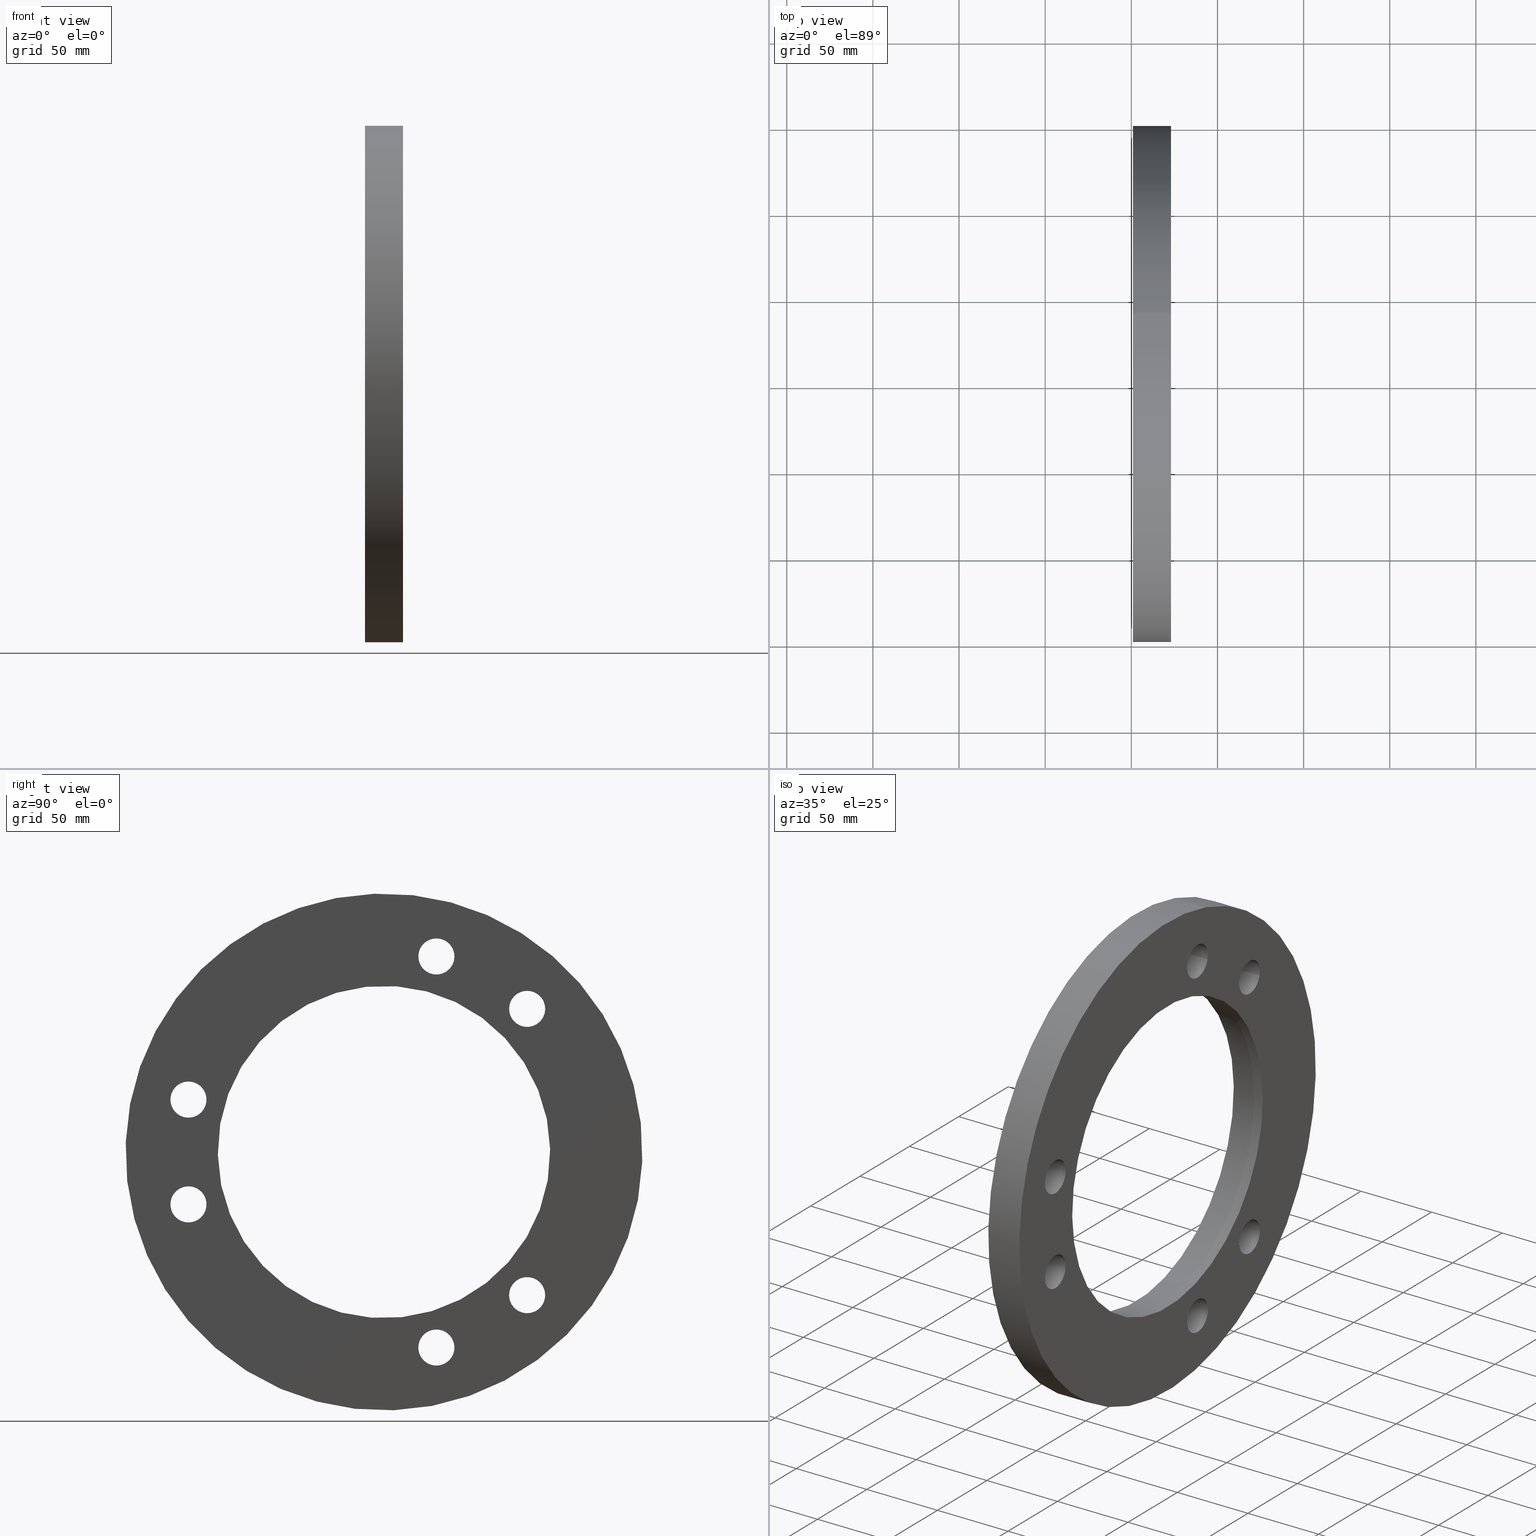
[diagram: canonical four-view strip — front | top / right | iso, engineering-drawing reading convention]
A machine part, canonical four-view strip (front | top / right | iso — engineering-drawing reading convention). The complete STEP part file that produces these views, byte-faithful:
ISO-10303-21;
HEADER;
/* Generated by software containing ST-Developer
 * from STEP Tools, Inc. (www.steptools.com) 
 */
/* OPTION: strings as raw bytes, not using required /X/ escapes */

FILE_DESCRIPTION(
/* description */ ('Unknown'),
/* implementation_level */ '2;1');

FILE_NAME(
/* name */ 'B15A11 SOLID',
/* time_stamp */ '2019-02-08T09:17:59+00:00',
/* author */ ('Unknown'),
/* organization */ ('Unknown'),
/* preprocessor_version */ 'ST-DEVELOPER v16.7',
/* originating_system */ 'DEX',
/* authorisation */ $);

FILE_SCHEMA (('AUTOMOTIVE_DESIGN {1 0 10303 214 3 1 1}'));
ENDSEC;

DATA;
#10=PROPERTY_DEFINITION_REPRESENTATION(#14,#12);
#11=PROPERTY_DEFINITION_REPRESENTATION(#15,#13);
#12=REPRESENTATION('',(#16),#361);
#13=REPRESENTATION('',(#17),#361);
#14=PROPERTY_DEFINITION('pmi validation property','',#370);
#15=PROPERTY_DEFINITION('pmi validation property','',#370);
#16=VALUE_REPRESENTATION_ITEM('number of annotations',COUNT_MEASURE(0.));
#17=VALUE_REPRESENTATION_ITEM('number of views',COUNT_MEASURE(0.));
#18=SHAPE_REPRESENTATION_RELATIONSHIP('','',#218,#19);
#19=ADVANCED_BREP_SHAPE_REPRESENTATION('',(#204),#363);
#20=CONICAL_SURFACE('',#246,96.45,0.124354709204595);
#21=PLANE('',#233);
#22=PLANE('',#240);
#23=ORIENTED_EDGE('',*,*,#57,.T.);
#24=ORIENTED_EDGE('',*,*,#58,.T.);
#25=ORIENTED_EDGE('',*,*,#59,.T.);
#26=ORIENTED_EDGE('',*,*,#60,.T.);
#27=ORIENTED_EDGE('',*,*,#61,.T.);
#28=ORIENTED_EDGE('',*,*,#62,.T.);
#29=ORIENTED_EDGE('',*,*,#63,.T.);
#30=ORIENTED_EDGE('',*,*,#64,.T.);
#31=ORIENTED_EDGE('',*,*,#60,.F.);
#32=ORIENTED_EDGE('',*,*,#58,.F.);
#33=ORIENTED_EDGE('',*,*,#64,.F.);
#34=ORIENTED_EDGE('',*,*,#62,.F.);
#35=ORIENTED_EDGE('',*,*,#65,.F.);
#36=ORIENTED_EDGE('',*,*,#66,.F.);
#37=ORIENTED_EDGE('',*,*,#67,.T.);
#38=ORIENTED_EDGE('',*,*,#68,.F.);
#39=ORIENTED_EDGE('',*,*,#69,.T.);
#40=ORIENTED_EDGE('',*,*,#67,.F.);
#41=ORIENTED_EDGE('',*,*,#59,.F.);
#42=ORIENTED_EDGE('',*,*,#57,.F.);
#43=ORIENTED_EDGE('',*,*,#63,.F.);
#44=ORIENTED_EDGE('',*,*,#61,.F.);
#45=ORIENTED_EDGE('',*,*,#70,.F.);
#46=ORIENTED_EDGE('',*,*,#71,.F.);
#47=ORIENTED_EDGE('',*,*,#72,.T.);
#48=ORIENTED_EDGE('',*,*,#69,.F.);
#49=ORIENTED_EDGE('',*,*,#73,.T.);
#50=ORIENTED_EDGE('',*,*,#72,.F.);
#51=ORIENTED_EDGE('',*,*,#68,.T.);
#52=ORIENTED_EDGE('',*,*,#73,.F.);
#53=ORIENTED_EDGE('',*,*,#71,.T.);
#54=ORIENTED_EDGE('',*,*,#66,.T.);
#55=ORIENTED_EDGE('',*,*,#70,.T.);
#56=ORIENTED_EDGE('',*,*,#65,.T.);
#57=EDGE_CURVE('',#74,#74,#91,.T.);
#58=EDGE_CURVE('',#75,#75,#92,.T.);
#59=EDGE_CURVE('',#76,#76,#93,.T.);
#60=EDGE_CURVE('',#77,#77,#94,.T.);
#61=EDGE_CURVE('',#78,#78,#95,.T.);
#62=EDGE_CURVE('',#79,#79,#96,.T.);
#63=EDGE_CURVE('',#80,#80,#97,.T.);
#64=EDGE_CURVE('',#81,#81,#98,.T.);
#65=EDGE_CURVE('',#82,#82,#99,.T.);
#66=EDGE_CURVE('',#83,#83,#100,.T.);
#67=EDGE_CURVE('',#84,#84,#101,.T.);
#68=EDGE_CURVE('',#85,#85,#102,.T.);
#69=EDGE_CURVE('',#86,#86,#103,.T.);
#70=EDGE_CURVE('',#87,#87,#104,.T.);
#71=EDGE_CURVE('',#88,#88,#105,.T.);
#72=EDGE_CURVE('',#89,#89,#106,.T.);
#73=EDGE_CURVE('',#90,#90,#107,.T.);
#74=VERTEX_POINT('',#316);
#75=VERTEX_POINT('',#318);
#76=VERTEX_POINT('',#321);
#77=VERTEX_POINT('',#323);
#78=VERTEX_POINT('',#326);
#79=VERTEX_POINT('',#328);
#80=VERTEX_POINT('',#331);
#81=VERTEX_POINT('',#333);
#82=VERTEX_POINT('',#336);
#83=VERTEX_POINT('',#338);
#84=VERTEX_POINT('',#340);
#85=VERTEX_POINT('',#342);
#86=VERTEX_POINT('',#345);
#87=VERTEX_POINT('',#348);
#88=VERTEX_POINT('',#350);
#89=VERTEX_POINT('',#352);
#90=VERTEX_POINT('',#355);
#91=CIRCLE('',#222,10.5);
#92=CIRCLE('',#223,10.5);
#93=CIRCLE('',#225,10.5);
#94=CIRCLE('',#226,10.5);
#95=CIRCLE('',#228,10.5);
#96=CIRCLE('',#229,10.5);
#97=CIRCLE('',#231,10.5);
#98=CIRCLE('',#232,10.5);
#99=CIRCLE('',#234,10.5);
#100=CIRCLE('',#235,10.5);
#101=CIRCLE('',#236,150.);
#102=CIRCLE('',#237,98.435);
#103=CIRCLE('',#239,150.);
#104=CIRCLE('',#241,10.5);
#105=CIRCLE('',#242,10.5);
#106=CIRCLE('',#243,96.45);
#107=CIRCLE('',#245,96.45);
#108=EDGE_LOOP('',(#23));
#109=EDGE_LOOP('',(#24));
#110=EDGE_LOOP('',(#25));
#111=EDGE_LOOP('',(#26));
#112=EDGE_LOOP('',(#27));
#113=EDGE_LOOP('',(#28));
#114=EDGE_LOOP('',(#29));
#115=EDGE_LOOP('',(#30));
#116=EDGE_LOOP('',(#31));
#117=EDGE_LOOP('',(#32));
#118=EDGE_LOOP('',(#33));
#119=EDGE_LOOP('',(#34));
#120=EDGE_LOOP('',(#35));
#121=EDGE_LOOP('',(#36));
#122=EDGE_LOOP('',(#37));
#123=EDGE_LOOP('',(#38));
#124=EDGE_LOOP('',(#39));
#125=EDGE_LOOP('',(#40));
#126=EDGE_LOOP('',(#41));
#127=EDGE_LOOP('',(#42));
#128=EDGE_LOOP('',(#43));
#129=EDGE_LOOP('',(#44));
#130=EDGE_LOOP('',(#45));
#131=EDGE_LOOP('',(#46));
#132=EDGE_LOOP('',(#47));
#133=EDGE_LOOP('',(#48));
#134=EDGE_LOOP('',(#49));
#135=EDGE_LOOP('',(#50));
#136=EDGE_LOOP('',(#51));
#137=EDGE_LOOP('',(#52));
#138=EDGE_LOOP('',(#53));
#139=EDGE_LOOP('',(#54));
#140=EDGE_LOOP('',(#55));
#141=EDGE_LOOP('',(#56));
#142=FACE_BOUND('',#108,.T.);
#143=FACE_BOUND('',#109,.T.);
#144=FACE_BOUND('',#110,.T.);
#145=FACE_BOUND('',#111,.T.);
#146=FACE_BOUND('',#112,.T.);
#147=FACE_BOUND('',#113,.T.);
#148=FACE_BOUND('',#114,.T.);
#149=FACE_BOUND('',#115,.T.);
#150=FACE_BOUND('',#116,.T.);
#151=FACE_BOUND('',#117,.T.);
#152=FACE_BOUND('',#118,.T.);
#153=FACE_BOUND('',#119,.T.);
#154=FACE_BOUND('',#120,.T.);
#155=FACE_BOUND('',#121,.T.);
#156=FACE_BOUND('',#122,.T.);
#157=FACE_BOUND('',#123,.T.);
#158=FACE_BOUND('',#124,.T.);
#159=FACE_BOUND('',#125,.T.);
#160=FACE_BOUND('',#126,.T.);
#161=FACE_BOUND('',#127,.T.);
#162=FACE_BOUND('',#128,.T.);
#163=FACE_BOUND('',#129,.T.);
#164=FACE_BOUND('',#130,.T.);
#165=FACE_BOUND('',#131,.T.);
#166=FACE_BOUND('',#132,.T.);
#167=FACE_BOUND('',#133,.T.);
#168=FACE_BOUND('',#134,.T.);
#169=FACE_BOUND('',#135,.T.);
#170=FACE_BOUND('',#136,.T.);
#171=FACE_BOUND('',#137,.T.);
#172=FACE_BOUND('',#138,.T.);
#173=FACE_BOUND('',#139,.T.);
#174=FACE_BOUND('',#140,.T.);
#175=FACE_BOUND('',#141,.T.);
#176=CYLINDRICAL_SURFACE('',#221,10.5);
#177=CYLINDRICAL_SURFACE('',#224,10.5);
#178=CYLINDRICAL_SURFACE('',#227,10.5);
#179=CYLINDRICAL_SURFACE('',#230,10.5);
#180=CYLINDRICAL_SURFACE('',#238,150.);
#181=CYLINDRICAL_SURFACE('',#244,96.45);
#182=CYLINDRICAL_SURFACE('',#247,10.5);
#183=CYLINDRICAL_SURFACE('',#248,10.5);
#184=ADVANCED_FACE('',(#142,#143),#176,.F.);
#185=ADVANCED_FACE('',(#144,#145),#177,.F.);
#186=ADVANCED_FACE('',(#146,#147),#178,.F.);
#187=ADVANCED_FACE('',(#148,#149),#179,.F.);
#188=ADVANCED_FACE('',(#150,#151,#152,#153,#154,#155,#156,#157),#21,.T.);
#189=ADVANCED_FACE('',(#158,#159),#180,.T.);
#190=ADVANCED_FACE('',(#160,#161,#162,#163,#164,#165,#166,#167),#22,.T.);
#191=ADVANCED_FACE('',(#168,#169),#181,.F.);
#192=ADVANCED_FACE('',(#170,#171),#20,.F.);
#193=ADVANCED_FACE('',(#172,#173),#182,.F.);
#194=ADVANCED_FACE('',(#174,#175),#183,.F.);
#195=CLOSED_SHELL('',(#184,#185,#186,#187,#188,#189,#190,#191,#192,#193,
#194));
#196=STYLED_ITEM('',(#197),#204);
#197=PRESENTATION_STYLE_ASSIGNMENT((#198));
#198=SURFACE_STYLE_USAGE(.BOTH.,#199);
#199=SURFACE_SIDE_STYLE('',(#200));
#200=SURFACE_STYLE_FILL_AREA(#201);
#201=FILL_AREA_STYLE('',(#202));
#202=FILL_AREA_STYLE_COLOUR('',#203);
#203=COLOUR_RGB('',0.506983280181885,0.531564235687256,0.550000011920929);
#204=MANIFOLD_SOLID_BREP('',#195);
#205=CONTEXT_DEPENDENT_SHAPE_REPRESENTATION(#209,#372);
#206=CONTEXT_DEPENDENT_SHAPE_REPRESENTATION(#210,#374);
#207=NEXT_ASSEMBLY_USAGE_OCCURRENCE('Part2_0','Part2_0','Part2_0',#375,
#376,'');
#208=NEXT_ASSEMBLY_USAGE_OCCURRENCE('CB15A11','CB15A11','CB15A11',#375,
#377,'');
#209=(
REPRESENTATION_RELATIONSHIP(' ',' ',#216,#217)
REPRESENTATION_RELATIONSHIP_WITH_TRANSFORMATION(#211)
SHAPE_REPRESENTATION_RELATIONSHIP()
);
#210=(
REPRESENTATION_RELATIONSHIP(' ',' ',#218,#217)
REPRESENTATION_RELATIONSHIP_WITH_TRANSFORMATION(#212)
SHAPE_REPRESENTATION_RELATIONSHIP()
);
#211=ITEM_DEFINED_TRANSFORMATION(' ',' ',#219,#220);
#212=ITEM_DEFINED_TRANSFORMATION(' ',' ',#219,#249);
#213=SHAPE_DEFINITION_REPRESENTATION(#371,#216);
#214=SHAPE_DEFINITION_REPRESENTATION(#370,#217);
#215=SHAPE_DEFINITION_REPRESENTATION(#373,#218);
#216=SHAPE_REPRESENTATION('Part2_0',(#219),#362);
#217=SHAPE_REPRESENTATION('B15A11',(#219,#220,#249),#361);
#218=SHAPE_REPRESENTATION('CB15A11',(#219),#363);
#219=AXIS2_PLACEMENT_3D('',#312,#250,#251);
#220=AXIS2_PLACEMENT_3D('',#313,#252,#253);
#221=AXIS2_PLACEMENT_3D('',#314,#254,#255);
#222=AXIS2_PLACEMENT_3D('',#315,#256,#257);
#223=AXIS2_PLACEMENT_3D('',#317,#258,#259);
#224=AXIS2_PLACEMENT_3D('',#319,#260,#261);
#225=AXIS2_PLACEMENT_3D('',#320,#262,#263);
#226=AXIS2_PLACEMENT_3D('',#322,#264,#265);
#227=AXIS2_PLACEMENT_3D('',#324,#266,#267);
#228=AXIS2_PLACEMENT_3D('',#325,#268,#269);
#229=AXIS2_PLACEMENT_3D('',#327,#270,#271);
#230=AXIS2_PLACEMENT_3D('',#329,#272,#273);
#231=AXIS2_PLACEMENT_3D('',#330,#274,#275);
#232=AXIS2_PLACEMENT_3D('',#332,#276,#277);
#233=AXIS2_PLACEMENT_3D('',#334,#278,#279);
#234=AXIS2_PLACEMENT_3D('',#335,#280,#281);
#235=AXIS2_PLACEMENT_3D('',#337,#282,#283);
#236=AXIS2_PLACEMENT_3D('',#339,#284,#285);
#237=AXIS2_PLACEMENT_3D('',#341,#286,#287);
#238=AXIS2_PLACEMENT_3D('',#343,#288,#289);
#239=AXIS2_PLACEMENT_3D('',#344,#290,#291);
#240=AXIS2_PLACEMENT_3D('',#346,#292,#293);
#241=AXIS2_PLACEMENT_3D('',#347,#294,#295);
#242=AXIS2_PLACEMENT_3D('',#349,#296,#297);
#243=AXIS2_PLACEMENT_3D('',#351,#298,#299);
#244=AXIS2_PLACEMENT_3D('',#353,#300,#301);
#245=AXIS2_PLACEMENT_3D('',#354,#302,#303);
#246=AXIS2_PLACEMENT_3D('',#356,#304,#305);
#247=AXIS2_PLACEMENT_3D('',#357,#306,#307);
#248=AXIS2_PLACEMENT_3D('',#358,#308,#309);
#249=AXIS2_PLACEMENT_3D('',#359,#310,#311);
#250=DIRECTION('',(0.,0.,1.));
#251=DIRECTION('',(1.,0.,0.));
#252=DIRECTION('',(0.,0.,1.));
#253=DIRECTION('',(1.,0.,0.));
#254=DIRECTION('',(1.,0.,0.));
#255=DIRECTION('',(0.,-0.866025403784438,0.500000000000001));
#256=DIRECTION('',(1.,0.,0.));
#257=DIRECTION('',(0.,-0.500000000000001,-0.866025403784438));
#258=DIRECTION('',(-1.,0.,0.));
#259=DIRECTION('',(0.,0.866025403784438,-0.500000000000001));
#260=DIRECTION('',(1.,0.,0.));
#261=DIRECTION('',(0.,-0.866025403784438,0.500000000000001));
#262=DIRECTION('',(1.,0.,0.));
#263=DIRECTION('',(0.,-0.500000000000001,-0.866025403784438));
#264=DIRECTION('',(-1.,0.,0.));
#265=DIRECTION('',(0.,0.866025403784438,-0.500000000000001));
#266=DIRECTION('',(1.,0.,0.));
#267=DIRECTION('',(0.,0.866025403784439,0.5));
#268=DIRECTION('',(1.,0.,0.));
#269=DIRECTION('',(0.,-0.5,0.866025403784439));
#270=DIRECTION('',(-1.,0.,0.));
#271=DIRECTION('',(0.,-0.866025403784439,-0.5));
#272=DIRECTION('',(1.,0.,0.));
#273=DIRECTION('',(0.,0.866025403784439,0.5));
#274=DIRECTION('',(1.,0.,0.));
#275=DIRECTION('',(0.,-0.5,0.866025403784439));
#276=DIRECTION('',(-1.,0.,0.));
#277=DIRECTION('',(0.,-0.866025403784439,-0.5));
#278=DIRECTION('',(-1.,0.,0.));
#279=DIRECTION('',(0.,0.,1.));
#280=DIRECTION('',(-1.,0.,0.));
#281=DIRECTION('',(0.,0.,1.));
#282=DIRECTION('',(-1.,0.,0.));
#283=DIRECTION('',(0.,0.,1.));
#284=DIRECTION('',(-1.,0.,0.));
#285=DIRECTION('',(0.,0.,1.));
#286=DIRECTION('',(-1.,0.,0.));
#287=DIRECTION('',(0.,0.,1.));
#288=DIRECTION('',(-1.,0.,0.));
#289=DIRECTION('',(0.,0.,1.));
#290=DIRECTION('',(-1.,0.,0.));
#291=DIRECTION('',(0.,0.,1.));
#292=DIRECTION('',(1.,0.,0.));
#293=DIRECTION('',(0.,0.,-1.));
#294=DIRECTION('',(1.,0.,0.));
#295=DIRECTION('',(0.,1.,0.));
#296=DIRECTION('',(1.,0.,0.));
#297=DIRECTION('',(0.,1.,0.));
#298=DIRECTION('',(-1.,0.,0.));
#299=DIRECTION('',(0.,0.,1.));
#300=DIRECTION('',(-1.,0.,0.));
#301=DIRECTION('',(0.,0.,1.));
#302=DIRECTION('',(-1.,0.,0.));
#303=DIRECTION('',(0.,0.,1.));
#304=DIRECTION('',(-1.,0.,0.));
#305=DIRECTION('',(0.,0.,1.));
#306=DIRECTION('',(1.,0.,0.));
#307=DIRECTION('',(0.,0.,-1.));
#308=DIRECTION('',(1.,0.,0.));
#309=DIRECTION('',(0.,0.,-1.));
#310=DIRECTION('',(0.,0.258819045102534,0.965925826289065));
#311=DIRECTION('',(1.,0.,0.));
#312=CARTESIAN_POINT('',(0.,0.,0.));
#313=CARTESIAN_POINT('',(0.,0.,0.));
#314=CARTESIAN_POINT('',(-402.834085261529,58.7499999999999,-101.757984944672));
#315=CARTESIAN_POINT('',(22.,58.7499999999999,-101.757984944672));
#316=CARTESIAN_POINT('',(22.,53.4999999999999,-110.851251684408));
#317=CARTESIAN_POINT('',(0.,58.7499999999999,-101.757984944672));
#318=CARTESIAN_POINT('',(0.,67.8432667397365,-107.007984944672));
#319=CARTESIAN_POINT('',(-402.834085261529,101.757984944671,-58.7500000000001));
#320=CARTESIAN_POINT('',(22.,101.757984944671,-58.7500000000001));
#321=CARTESIAN_POINT('',(22.,96.5079849446714,-67.8432667397367));
#322=CARTESIAN_POINT('',(0.,101.757984944671,-58.7500000000001));
#323=CARTESIAN_POINT('',(0.,110.851251684408,-64.0000000000001));
#324=CARTESIAN_POINT('',(-402.834085261529,-117.5,-6.93889390390723E-15));
#325=CARTESIAN_POINT('',(22.,-117.5,-6.93889390390723E-15));
#326=CARTESIAN_POINT('',(22.,-122.75,9.0932667397366));
#327=CARTESIAN_POINT('',(0.,-117.5,-6.93889390390723E-15));
#328=CARTESIAN_POINT('',(0.,-126.593266739737,-5.25));
#329=CARTESIAN_POINT('',(-402.834085261529,-101.757984944672,-58.75));
#330=CARTESIAN_POINT('',(22.,-101.757984944672,-58.75));
#331=CARTESIAN_POINT('',(22.,-107.007984944672,-49.6567332602634));
#332=CARTESIAN_POINT('',(0.,-101.757984944672,-58.75));
#333=CARTESIAN_POINT('',(0.,-110.851251684408,-64.));
#334=CARTESIAN_POINT('',(0.,0.,98.435));
#335=CARTESIAN_POINT('',(0.,58.75,101.757984944672));
#336=CARTESIAN_POINT('',(0.,58.75,112.257984944672));
#337=CARTESIAN_POINT('',(0.,-4.33680868994202E-16,117.5));
#338=CARTESIAN_POINT('',(0.,-4.33680868994202E-16,128.));
#339=CARTESIAN_POINT('',(0.,0.,0.));
#340=CARTESIAN_POINT('',(0.,0.,150.));
#341=CARTESIAN_POINT('',(0.,0.,0.));
#342=CARTESIAN_POINT('',(0.,0.,98.435));
#343=CARTESIAN_POINT('',(-60.,0.,0.));
#344=CARTESIAN_POINT('',(22.,0.,0.));
#345=CARTESIAN_POINT('',(22.,0.,150.));
#346=CARTESIAN_POINT('',(22.,0.,150.));
#347=CARTESIAN_POINT('',(22.,58.75,101.757984944672));
#348=CARTESIAN_POINT('',(22.,69.25,101.757984944672));
#349=CARTESIAN_POINT('',(22.,-4.33680868994202E-16,117.5));
#350=CARTESIAN_POINT('',(22.,10.5,117.5));
#351=CARTESIAN_POINT('',(22.,0.,0.));
#352=CARTESIAN_POINT('',(22.,0.,96.45));
#353=CARTESIAN_POINT('',(-60.,0.,0.));
#354=CARTESIAN_POINT('',(15.880036816357,0.,0.));
#355=CARTESIAN_POINT('',(15.880036816357,0.,96.45));
#356=CARTESIAN_POINT('',(15.880036816357,0.,0.));
#357=CARTESIAN_POINT('',(-402.834085261529,-4.33680868994202E-16,117.5));
#358=CARTESIAN_POINT('',(-402.834085261529,58.75,101.757984944672));
#359=CARTESIAN_POINT('',(-149.000001015015,0.,0.));
#360=MECHANICAL_DESIGN_GEOMETRIC_PRESENTATION_REPRESENTATION('',(#196),
#361);
#361=(
GEOMETRIC_REPRESENTATION_CONTEXT(3)
GLOBAL_UNCERTAINTY_ASSIGNED_CONTEXT((#364))
GLOBAL_UNIT_ASSIGNED_CONTEXT((#369,#368,#367))
REPRESENTATION_CONTEXT('B15A11','TOP_LEVEL_ASSEMBLY_PART')
);
#362=(
GEOMETRIC_REPRESENTATION_CONTEXT(3)
GLOBAL_UNCERTAINTY_ASSIGNED_CONTEXT((#365))
GLOBAL_UNIT_ASSIGNED_CONTEXT((#369,#368,#367))
REPRESENTATION_CONTEXT('Part2_0','COMPONENT_PART')
);
#363=(
GEOMETRIC_REPRESENTATION_CONTEXT(3)
GLOBAL_UNCERTAINTY_ASSIGNED_CONTEXT((#366))
GLOBAL_UNIT_ASSIGNED_CONTEXT((#369,#368,#367))
REPRESENTATION_CONTEXT('CB15A11','COMPONENT_PART')
);
#364=UNCERTAINTY_MEASURE_WITH_UNIT(LENGTH_MEASURE(0.005),#369,
'DISTANCE_ACCURACY_VALUE','Maximum Tolerance applied to model');
#365=UNCERTAINTY_MEASURE_WITH_UNIT(LENGTH_MEASURE(0.005),#369,
'DISTANCE_ACCURACY_VALUE','Maximum Tolerance applied to model');
#366=UNCERTAINTY_MEASURE_WITH_UNIT(LENGTH_MEASURE(0.005),#369,
'DISTANCE_ACCURACY_VALUE','Maximum Tolerance applied to model');
#367=(
NAMED_UNIT(*)
SI_UNIT($,.STERADIAN.)
SOLID_ANGLE_UNIT()
);
#368=(
NAMED_UNIT(*)
PLANE_ANGLE_UNIT()
SI_UNIT($,.RADIAN.)
);
#369=(
LENGTH_UNIT()
NAMED_UNIT(*)
SI_UNIT(.MILLI.,.METRE.)
);
#370=PRODUCT_DEFINITION_SHAPE('','',#375);
#371=PRODUCT_DEFINITION_SHAPE('','',#376);
#372=PRODUCT_DEFINITION_SHAPE(' ','NAUO PRDDFN',#207);
#373=PRODUCT_DEFINITION_SHAPE('','',#377);
#374=PRODUCT_DEFINITION_SHAPE(' ','NAUO PRDDFN',#208);
#375=PRODUCT_DEFINITION('','',#381,#378);
#376=PRODUCT_DEFINITION('','',#382,#379);
#377=PRODUCT_DEFINITION('','',#383,#380);
#378=PRODUCT_DEFINITION_CONTEXT('',#397,'design');
#379=PRODUCT_DEFINITION_CONTEXT('',#397,'design');
#380=PRODUCT_DEFINITION_CONTEXT('',#397,'design');
#381=PRODUCT_DEFINITION_FORMATION_WITH_SPECIFIED_SOURCE('','',#387,
 .NOT_KNOWN.);
#382=PRODUCT_DEFINITION_FORMATION_WITH_SPECIFIED_SOURCE('','',#388,
 .NOT_KNOWN.);
#383=PRODUCT_DEFINITION_FORMATION_WITH_SPECIFIED_SOURCE('','',#389,
 .NOT_KNOWN.);
#384=PRODUCT_RELATED_PRODUCT_CATEGORY('','',(#387));
#385=PRODUCT_RELATED_PRODUCT_CATEGORY('','',(#388));
#386=PRODUCT_RELATED_PRODUCT_CATEGORY('','',(#389));
#387=PRODUCT('B15A11','B15A11','B15A11',(#393));
#388=PRODUCT('Part2_0','Part2_0','Part2_0',(#394));
#389=PRODUCT('CB15A11','CB15A11','CB15A11',(#395));
#390=PRODUCT_CATEGORY('','');
#391=PRODUCT_CATEGORY('','');
#392=PRODUCT_CATEGORY('','');
#393=PRODUCT_CONTEXT('',#397,'mechanical');
#394=PRODUCT_CONTEXT('',#397,'mechanical');
#395=PRODUCT_CONTEXT('',#397,'mechanical');
#396=APPLICATION_PROTOCOL_DEFINITION('international standard',
'automotive_design',2010,#397);
#397=APPLICATION_CONTEXT(
'core data for automotive mechanical design processes');
ENDSEC;
END-ISO-10303-21;
